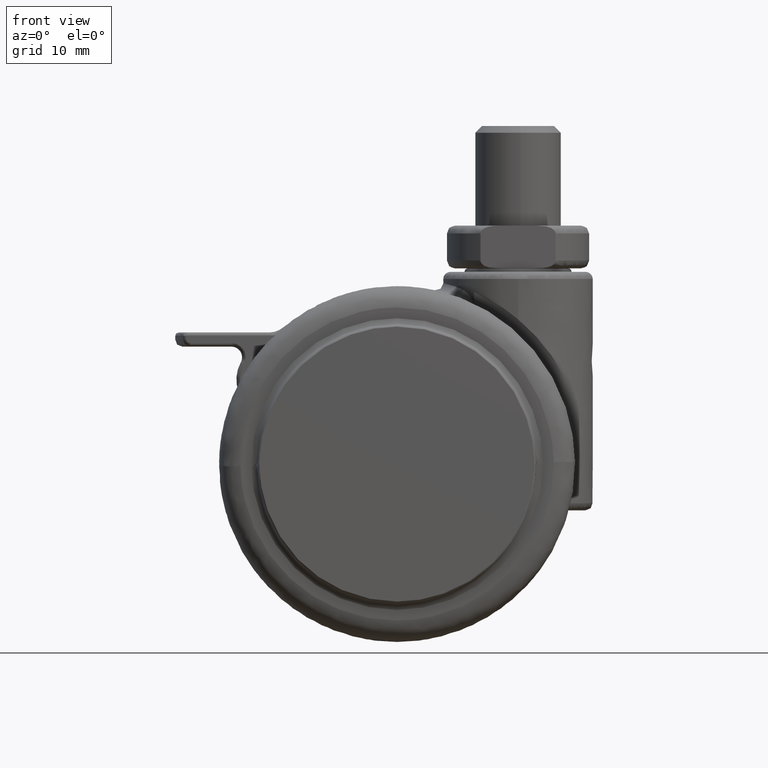
[diagram: clean part render]
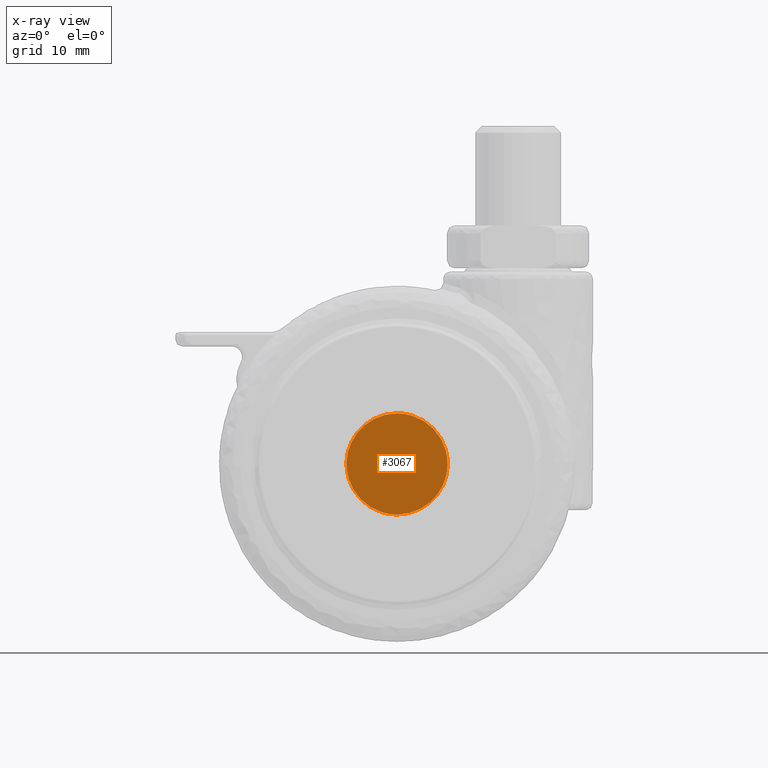
[diagram: x-ray — body ghosted, one internal face saturated and labeled with its STEP entity id]
A machine part, front view, then the same camera in x-ray: the body is ghosted and one INTERNAL B-rep face — a face not visible from any outside direction — is saturated and labeled: STEP entity #3067.
In plain terms, the highlighted face is a freeform B-spline surface patch.
Its self-contained STEP definition (entity closure, byte-faithful):
#2996=CARTESIAN_POINT('',(7.818627365660185,8.499999999999998,7.820341349816889));
#2997=CARTESIAN_POINT('',(7.818627365660185,8.499999999999998,-7.820341731229564));
#2998=CARTESIAN_POINT('',(-7.818627619922454,8.500000000000002,7.820341349816889));
#2999=CARTESIAN_POINT('',(-7.818627619922454,8.500000000000002,-7.820341731229564));
#3000=B_SPLINE_SURFACE_WITH_KNOTS('',1,1,((#2996,#2998),(#2997,#2999)),.UNSPECIFIED.,.F.,.F.,.U.,(2,2),(2,2),(0.0,15.640683081046451),(0.0,15.637254985582640),.UNSPECIFIED.);
#3001=CARTESIAN_POINT('',(1.040915E-015,8.500000000000000,7.110047620127459));
#3002=VERTEX_POINT('',#3001);
#3003=CARTESIAN_POINT('',(-6.815135572630897,8.500000000000000,-2.026500531668718));
#3004=VERTEX_POINT('',#3003);
#3005=CARTESIAN_POINT('',(1.040915E-015,8.500000000000000,7.110047620127459));
#3006=CARTESIAN_POINT('',(-7.110047623086728,8.500000000000004,7.110047619247512));
#3007=CARTESIAN_POINT('',(-7.110047627054002,8.500000000000002,-2.059628E-009));
#3008=CARTESIAN_POINT('',(-7.110047627631351,8.500000000000000,-1.034709210315976));
#3009=CARTESIAN_POINT('',(-6.815135572630897,8.500000000000000,-2.026500531668718));
#3017=(BOUNDED_CURVE()B_SPLINE_CURVE(2,(#3005,#3006,#3007,#3008,#3009),.UNSPECIFIED.,.F.,.U.)B_SPLINE_CURVE_WITH_KNOTS((3,2,3),(0.0,0.250000000000000,0.298526662076135),.UNSPECIFIED.)CURVE()GEOMETRIC_REPRESENTATION_ITEM()RATIONAL_B_SPLINE_CURVE((1.0,0.707106781186547,1.0,0.943147478984992,0.908365862573758))REPRESENTATION_ITEM(''));
#3018=EDGE_CURVE('',#3002,#3004,#3017,.T.);
#3019=ORIENTED_EDGE('',*,*,#3018,.T.);
#3020=CARTESIAN_POINT('',(1.040915E-015,8.500000000000000,-7.110047620127459));
#3021=VERTEX_POINT('',#3020);
#3022=CARTESIAN_POINT('',(-6.815135572630897,8.500000000000000,-2.026500531668718));
#3023=CARTESIAN_POINT('',(-5.303527945819377,8.500000000000002,-7.110047621307140));
#3024=CARTESIAN_POINT('',(1.040915E-015,8.500000000000000,-7.110047620127459));
#3032=(BOUNDED_CURVE()B_SPLINE_CURVE(2,(#3022,#3023,#3024),.UNSPECIFIED.,.F.,.U.)B_SPLINE_CURVE_WITH_KNOTS((3,3),(0.298526662076135,0.500000000000000),.UNSPECIFIED.)CURVE()GEOMETRIC_REPRESENTATION_ITEM()RATIONAL_B_SPLINE_CURVE((0.908365862573758,0.763959302201555,1.0))REPRESENTATION_ITEM(''));
#3033=EDGE_CURVE('',#3004,#3021,#3032,.T.);
#3034=ORIENTED_EDGE('',*,*,#3033,.T.);
#3035=CARTESIAN_POINT('',(6.815135572630898,8.500000000000000,2.026500531668718));
#3036=VERTEX_POINT('',#3035);
#3037=CARTESIAN_POINT('',(1.040915E-015,8.500000000000000,-7.110047620127459));
#3038=CARTESIAN_POINT('',(7.110047623086728,8.500000000000004,-7.110047619247512));
#3039=CARTESIAN_POINT('',(7.110047627054003,8.500000000000002,2.059628E-009));
#3040=CARTESIAN_POINT('',(7.110047627631352,8.500000000000000,1.034709210315976));
#3041=CARTESIAN_POINT('',(6.815135572630898,8.500000000000000,2.026500531668718));
#3049=(BOUNDED_CURVE()B_SPLINE_CURVE(2,(#3037,#3038,#3039,#3040,#3041),.UNSPECIFIED.,.F.,.U.)B_SPLINE_CURVE_WITH_KNOTS((3,2,3),(0.500000000000000,0.750000000000000,0.798526662076135),.UNSPECIFIED.)CURVE()GEOMETRIC_REPRESENTATION_ITEM()RATIONAL_B_SPLINE_CURVE((1.0,0.707106781186547,1.0,0.943147478984992,0.908365862573758))REPRESENTATION_ITEM(''));
#3050=EDGE_CURVE('',#3021,#3036,#3049,.T.);
#3051=ORIENTED_EDGE('',*,*,#3050,.T.);
#3052=CARTESIAN_POINT('',(6.815135572630898,8.500000000000000,2.026500531668718));
#3053=CARTESIAN_POINT('',(5.303527945819378,8.500000000000002,7.110047621307140));
#3054=CARTESIAN_POINT('',(1.040915E-015,8.500000000000000,7.110047620127459));
#3062=(BOUNDED_CURVE()B_SPLINE_CURVE(2,(#3052,#3053,#3054),.UNSPECIFIED.,.F.,.U.)B_SPLINE_CURVE_WITH_KNOTS((3,3),(0.798526662076135,1.0),.UNSPECIFIED.)CURVE()GEOMETRIC_REPRESENTATION_ITEM()RATIONAL_B_SPLINE_CURVE((0.908365862573758,0.763959302201555,1.0))REPRESENTATION_ITEM(''));
#3063=EDGE_CURVE('',#3036,#3002,#3062,.T.);
#3064=ORIENTED_EDGE('',*,*,#3063,.T.);
#3065=EDGE_LOOP('',(#3019,#3034,#3051,#3064));
#3066=FACE_OUTER_BOUND('',#3065,.T.);
#3067=ADVANCED_FACE('',(#3066),#3000,.F.);